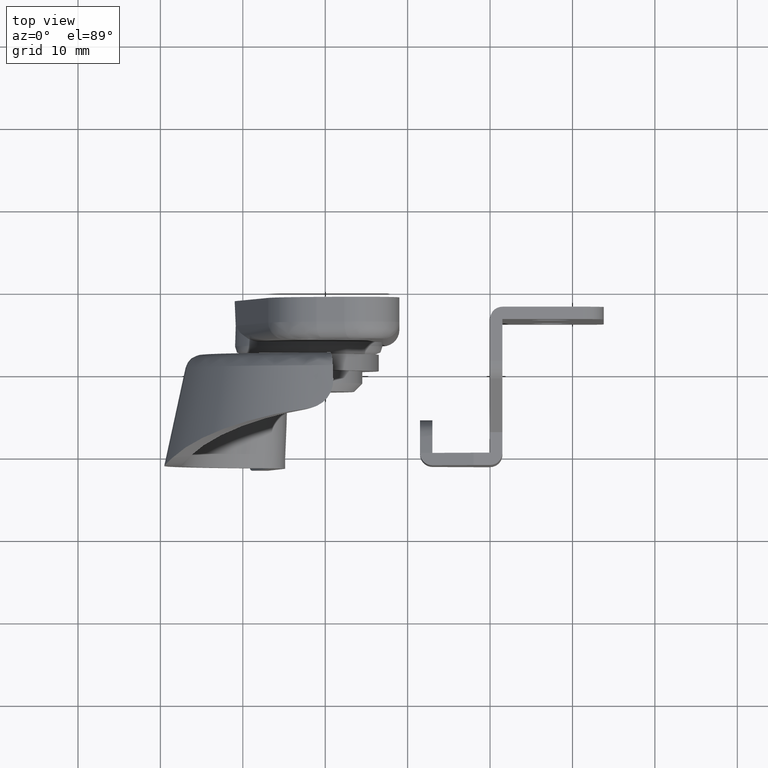
[diagram: clean part render]
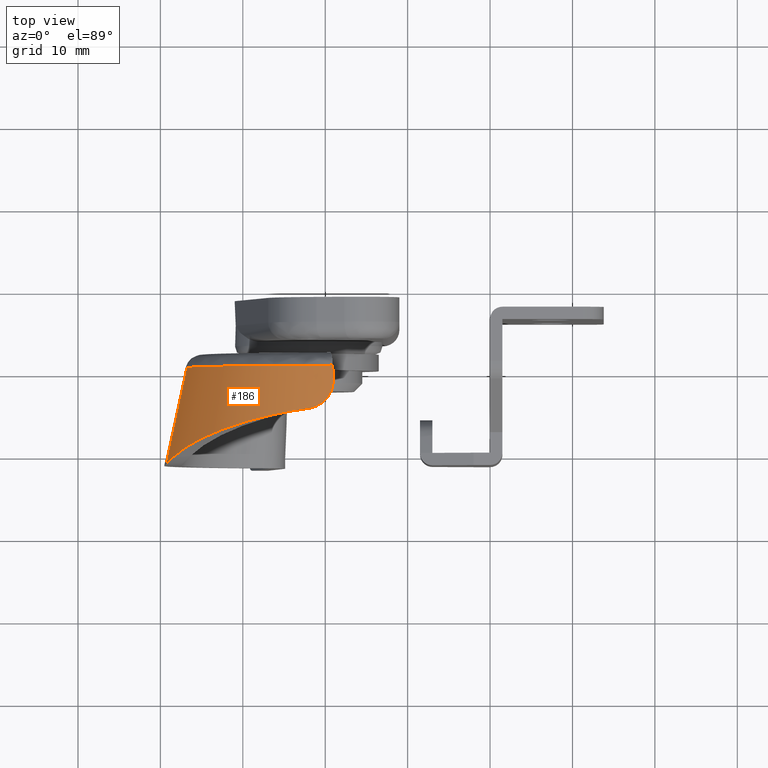
[diagram: same view with one face highlighted and labeled with its STEP entity id]
A machine part, top view. The second image highlights one B-rep face of the part: STEP entity #186.
In plain terms, the highlighted face is a freeform B-spline surface patch.
Its self-contained STEP definition (entity closure, byte-faithful):
#186=ADVANCED_FACE('',(#403),#402,.T.);
#402=( BOUNDED_SURFACE() B_SPLINE_SURFACE( 2,1,((#2578,#2579),(#2580,#2581),(#2582,#2583)), .UNSPECIFIED.,.F.,.F.,.F.) B_SPLINE_SURFACE_WITH_KNOTS((3,3),(2,2),(0.00000000000E+00,1.00000000000E+00),(0.00000000000E+00,1.00000000000E+00), .UNSPECIFIED. ) GEOMETRIC_REPRESENTATION_ITEM() RATIONAL_B_SPLINE_SURFACE(((1.00000000000E+00,1.00000000000E+00),(7.85793998968E-01,7.85793998968E-01),(1.00000000000E+00,1.00000000000E+00))) REPRESENTATION_ITEM('') SURFACE() );
#403=FACE_OUTER_BOUND('',#2584,.T.);
#2578=CARTESIAN_POINT('',(-1.89264635193E+01,4.24859288702E-01,1.89543824107E+01));
#2579=CARTESIAN_POINT('',(-1.91411663196E+01,-1.12525399628E+01,2.14838517709E+01));
#2580=CARTESIAN_POINT('',(-3.44191495049E+01,4.24859288702E-01,1.76393543982E+01));
#2581=CARTESIAN_POINT('',(-3.66247649809E+01,-1.12525399628E+01,1.99998339563E+01));
#2582=CARTESIAN_POINT('',(-3.67808507819E+01,4.24859288702E-01,2.27136868764E+00));
#2583=CARTESIAN_POINT('',(-3.92899605011E+01,-1.12525399628E+01,2.65696038064E+00));
#2584=EDGE_LOOP('',(#4481,#4482,#4483,#4484,#4485,#4486));
#4481=ORIENTED_EDGE('',*,*,#5569,.T.);
#4482=ORIENTED_EDGE('',*,*,#5570,.F.);
#4483=ORIENTED_EDGE('',*,*,#5571,.F.);
#4484=ORIENTED_EDGE('',*,*,#5572,.F.);
#4485=ORIENTED_EDGE('',*,*,#5573,.F.);
#4486=ORIENTED_EDGE('',*,*,#5574,.F.);
#5569=EDGE_CURVE('',#6113,#6114,#6115,.T.);
#5570=EDGE_CURVE('',#6121,#6114,#6122,.T.);
#5571=EDGE_CURVE('',#6128,#6121,#6129,.T.);
#5572=EDGE_CURVE('',#6135,#6128,#6136,.T.);
#5573=EDGE_CURVE('',#6142,#6135,#6143,.T.);
#5574=EDGE_CURVE('',#6113,#6142,#6149,.T.);
#6113=VERTEX_POINT('',#9719);
#6114=VERTEX_POINT('',#9720);
#6115=(BOUNDED_CURVE() B_SPLINE_CURVE(3,(#9721,#9722,#9723,#9724,#9725,#9726,#9727,#9728,#9729,#9730,#9731,#9732,#9733,#9734,#9735,#9736,#9737,#9738,#9739,#9740,#9741,#9742),.UNSPECIFIED.,.F.,.F.) B_SPLINE_CURVE_WITH_KNOTS((4,2,2,2,2,2,2,2,2,2,4),(3.11515319098E-03,6.01493722765E-03,7.46482924598E-03,8.91472126432E-03,1.47142893377E-02,1.61641813560E-02,1.76140733743E-02,2.05138574110E-02,2.34136414477E-02,2.48635334660E-02,2.63134254843E-02),.UNSPECIFIED.) CURVE() GEOMETRIC_REPRESENTATION_ITEM() RATIONAL_B_SPLINE_CURVE((1.00000000000E+00,1.00000000000E+00,1.00000000000E+00,1.00000000000E+00,1.00000000000E+00,1.00000000000E+00,1.00000000000E+00,1.00000000000E+00,1.00000000000E+00,1.00000000000E+00,1.00000000000E+00,1.00000000000E+00,1.00000000000E+00,1.00000000000E+00,1.00000000000E+00,1.00000000000E+00,1.00000000000E+00,1.00000000000E+00,1.00000000000E+00,1.00000000000E+00,1.00000000000E+00,1.00000000000E+00)) REPRESENTATION_ITEM('') );
#6121=VERTEX_POINT('',#9743);
#6122=(BOUNDED_CURVE() B_SPLINE_CURVE(3,(#9744,#9745,#9746,#9747,#9748,#9749,#9750,#9751,#9752,#9753,#9754,#9755,#9756,#9757,#9758,#9759),.UNSPECIFIED.,.F.,.F.) B_SPLINE_CURVE_WITH_KNOTS((4,2,2,2,2,2,2,4),(3.90312782095E-18,6.38517043559E-04,1.27703408712E-03,1.91555113068E-03,2.55406817424E-03,3.19258521779E-03,3.83110226135E-03,5.10813634847E-03),.UNSPECIFIED.) CURVE() GEOMETRIC_REPRESENTATION_ITEM() RATIONAL_B_SPLINE_CURVE((1.00000000000E+00,1.00000000000E+00,1.00000000000E+00,1.00000000000E+00,1.00000000000E+00,1.00000000000E+00,1.00000000000E+00,1.00000000000E+00,1.00000000000E+00,1.00000000000E+00,1.00000000000E+00,1.00000000000E+00,1.00000000000E+00,1.00000000000E+00,1.00000000000E+00,1.00000000000E+00)) REPRESENTATION_ITEM('') );
#6128=VERTEX_POINT('',#9760);
#6129=(BOUNDED_CURVE() B_SPLINE_CURVE(3,(#9761,#9762,#9763,#9764),.UNSPECIFIED.,.F.,.F.) B_SPLINE_CURVE_WITH_KNOTS((4,4),(2.71075946339E-02,2.89331908794E-02),.UNSPECIFIED.) CURVE() GEOMETRIC_REPRESENTATION_ITEM() RATIONAL_B_SPLINE_CURVE((1.00000000000E+00,1.00000000000E+00,1.00000000000E+00,1.00000000000E+00)) REPRESENTATION_ITEM('') );
#6135=VERTEX_POINT('',#9765);
#6136=CIRCLE('',#9769,1.97543527278E+01);
#6142=VERTEX_POINT('',#9770);
#6143=LINE('',#9771,#9772);
#6149=(BOUNDED_CURVE() B_SPLINE_CURVE(3,(#9774,#9775,#9776,#9777),.UNSPECIFIED.,.F.,.F.) B_SPLINE_CURVE_WITH_KNOTS((4,4),(0.00000000000E+00,3.05918385532E-03),.UNSPECIFIED.) CURVE() GEOMETRIC_REPRESENTATION_ITEM() RATIONAL_B_SPLINE_CURVE((1.00000000000E+00,1.00000000000E+00,1.00000000000E+00,1.00000000000E+00)) REPRESENTATION_ITEM('') );
#9719=CARTESIAN_POINT('',(-3.84927773335E+01,-1.05430923227E+01,5.52449617538E+00));
#9720=CARTESIAN_POINT('',(-2.20833587904E+01,-4.83713740297E+00,1.96038196510E+01));
#9721=CARTESIAN_POINT('',(-3.84927773335E+01,-1.05430923227E+01,5.52449617538E+00));
#9722=CARTESIAN_POINT('',(-3.81716235570E+01,-1.02480203146E+01,6.38802743367E+00));
#9723=CARTESIAN_POINT('',(-3.77977958004E+01,-9.95463797015E+00,7.22991695651E+00));
#9724=CARTESIAN_POINT('',(-3.71571953220E+01,-9.51731911072E+00,8.46000710060E+00));
#9725=CARTESIAN_POINT('',(-3.69303141823E+01,-9.37200844301E+00,8.86456492456E+00));
#9726=CARTESIAN_POINT('',(-3.64492312814E+01,-9.08238611262E+00,9.66249803058E+00));
#9727=CARTESIAN_POINT('',(-3.61941789730E+01,-8.93765350787E+00,1.00569896504E+01));
#9728=CARTESIAN_POINT('',(-3.48655552198E+01,-8.22571395982E+00,1.19765325275E+01));
#9729=CARTESIAN_POINT('',(-3.36274353490E+01,-7.68793692376E+00,1.33596541303E+01));
#9730=CARTESIAN_POINT('',(-3.18576725724E+01,-7.05952749922E+00,1.48966124944E+01));
#9731=CARTESIAN_POINT('',(-3.14924476810E+01,-6.93607583834E+00,1.51942655813E+01));
#9732=CARTESIAN_POINT('',(-3.07386635983E+01,-6.69391468399E+00,1.57694615440E+01));
#9733=CARTESIAN_POINT('',(-3.03509862381E+01,-6.57553910718E+00,1.60461765399E+01));
#9734=CARTESIAN_POINT('',(-2.91696303379E+01,-6.23294936428E+00,1.68339623059E+01));
#9735=CARTESIAN_POINT('',(-2.83526063696E+01,-6.01954872471E+00,1.73068249106E+01));
#9736=CARTESIAN_POINT('',(-2.66597351783E+01,-5.62391663626E+00,1.81486181120E+01));
#9737=CARTESIAN_POINT('',(-2.57838977502E+01,-5.44168187699E+00,1.85175668967E+01));
#9738=CARTESIAN_POINT('',(-2.44238407515E+01,-5.19385288721E+00,1.89896474377E+01));
#9739=CARTESIAN_POINT('',(-2.39613185099E+01,-5.11529183966E+00,1.91337853324E+01));
#9740=CARTESIAN_POINT('',(-2.30273201810E+01,-4.96834809411E+00,1.93917812909E+01));
#9741=CARTESIAN_POINT('',(-2.25569969581E+01,-4.90010788795E+00,1.95054339649E+01));
#9742=CARTESIAN_POINT('',(-2.20833587904E+01,-4.83713740297E+00,1.96038196510E+01));
#9743=CARTESIAN_POINT('',(-1.90283490488E+01,-1.35660682073E+00,1.93342821917E+01));
#9744=CARTESIAN_POINT('',(-1.90283490488E+01,-1.35660682073E+00,1.93342821917E+01));
#9745=CARTESIAN_POINT('',(-1.90211886788E+01,-1.56717714969E+00,1.93808692966E+01));
#9746=CARTESIAN_POINT('',(-1.90336874851E+01,-1.77554569863E+00,1.94252581477E+01));
#9747=CARTESIAN_POINT('',(-1.90973315189E+01,-2.18798328318E+00,1.95095746672E+01));
#9748=CARTESIAN_POINT('',(-1.91491856499E+01,-2.39393541782E+00,1.95498489565E+01));
#9749=CARTESIAN_POINT('',(-1.92914691039E+01,-2.79208338666E+00,1.96230471661E+01));
#9750=CARTESIAN_POINT('',(-1.93807979538E+01,-2.98244889136E+00,1.96556752039E+01));
#9751=CARTESIAN_POINT('',(-1.95956948297E+01,-3.34604552556E+00,1.97116862222E+01));
#9752=CARTESIAN_POINT('',(-1.97230309696E+01,-3.52094312537E+00,1.97352057724E+01));
#9753=CARTESIAN_POINT('',(-2.00054982178E+01,-3.83971781324E+00,1.97690886827E+01));
#9754=CARTESIAN_POINT('',(-2.01607823539E+01,-3.98476810320E+00,1.97797201718E+01));
#9755=CARTESIAN_POINT('',(-2.04992075999E+01,-4.24658441183E+00,1.97865509802E+01));
#9756=CARTESIAN_POINT('',(-2.06826681542E+01,-4.36286282902E+00,1.97825188174E+01));
#9757=CARTESIAN_POINT('',(-2.12502962452E+01,-4.65507017961E+00,1.97468934194E+01));
#9758=CARTESIAN_POINT('',(-2.16643242932E+01,-4.78142650948E+00,1.96908628822E+01));
#9759=CARTESIAN_POINT('',(-2.20833587904E+01,-4.83713740297E+00,1.96038196510E+01));
#9760=CARTESIAN_POINT('',(-1.90889629746E+01,4.24859288663E-01,1.89399132821E+01));
#9761=CARTESIAN_POINT('',(-1.90889629746E+01,4.24859288663E-01,1.89399132821E+01));
#9762=CARTESIAN_POINT('',(-1.90687467337E+01,-1.68945659079E-01,1.90714450508E+01));
#9763=CARTESIAN_POINT('',(-1.90485423277E+01,-7.62768043154E-01,1.92028998189E+01));
#9764=CARTESIAN_POINT('',(-1.90283490488E+01,-1.35660682073E+00,1.93342821917E+01));
#9765=CARTESIAN_POINT('',(-3.67807867464E+01,4.24859288662E-01,2.27178534791E+00));
#9766=CARTESIAN_POINT('',(-1.72557106500E+01,4.24859288662E-01,-7.29190347995E-01));
#9767=DIRECTION('',(0.00000000000E+00,1.00000000000E+00,0.00000000000E+00));
#9768=DIRECTION('',(1.51914655832E-01,-0.00000000000E+00,9.88393614580E-01));
#9769=AXIS2_PLACEMENT_3D('',#9766,#9767,#9768);
#9770=CARTESIAN_POINT('',(-3.92898662316E+01,-1.12524375512E+01,2.65742720236E+00));
#9771=CARTESIAN_POINT('',(-3.92898662316E+01,-1.12524375512E+01,2.65742720236E+00));
#9772=VECTOR('',#9773,1.19500402087E+01);
#9773=DIRECTION('',(2.09964104004E-01,9.77176363923E-01,-3.22711763071E-02));
#9774=CARTESIAN_POINT('',(-3.84927773335E+01,-1.05430923227E+01,5.52449617538E+00));
#9775=CARTESIAN_POINT('',(-3.88334154069E+01,-1.08560662552E+01,4.60857475200E+00));
#9776=CARTESIAN_POINT('',(-3.91015493914E+01,-1.10923048840E+01,3.65351090587E+00));
#9777=CARTESIAN_POINT('',(-3.92898662316E+01,-1.12524375512E+01,2.65742720236E+00));